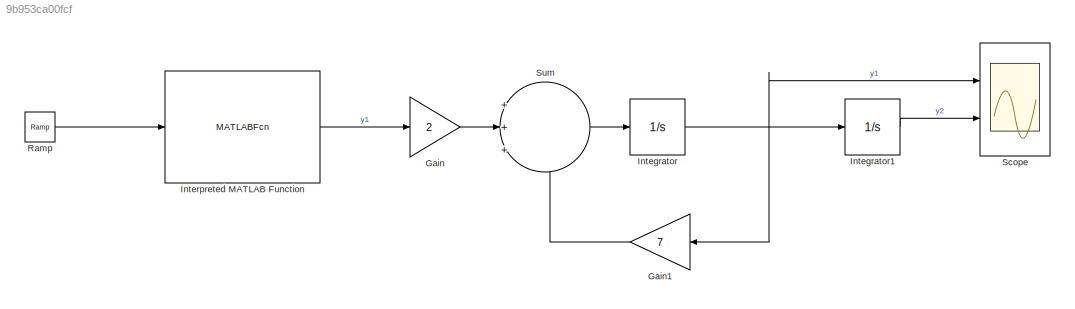
MODEL slx_9b953ca00fcf
KIND model
CONFIG AbsTol = auto
CONFIG EnableMultiTasking = off
CONFIG FixedStep = auto
CONFIG MaxStep = 1e-3
CONFIG MinStep = auto
CONFIG RelTol = 1e-3
CONFIG SampleTimeConstraint = Unconstrained
CONFIG SolverName = ode113
CONFIG StartTime = 0.0
CONFIG StopTime = 1.3
BLOCK [Gain] Gain
  Gain = 2
BLOCK [Gain] Gain1
  Gain = 7
  NameLocation = top
BLOCK [Integrator] Integrator
  InitialCondition = 3
  Ports = [1, 1]
BLOCK [Integrator] Integrator1
  InitialCondition = 1
  Ports = [1, 1]
BLOCK [MATLABFcn] Interpreted MATLAB Function
  MATLABFcn = (7*(2+3*exp(7)-5*exp(14)-4*exp(7-7*u)+25*exp(14-7*u)))/((9-4*exp(7)-5*exp(14)))
  OutputDimensions = 1
  Ports = [1, 1]
BLOCK [Reference] Ramp  REF=simulink/Sources/Ramp
  Ports = [0, 1]
  SourceBlock = simulink/Sources/Ramp
  SourceProductBaseCode = SL
  SourceType = Ramp
BLOCK [Scope] Scope
  Floating = off
  NumInputPorts = 2
  Ports = [2]
  ScopeSpecificationString = Simulink.scopes.TimeScopeBlockCfg('CurrentConfiguration', extmgr.ConfigurationSet(extmgr.Configuration('Core','General UI',true),extmgr.Configuration('Core','Source UI',true),extmgr.Configuration('Sources','WiredSimulink',true),extmgr.Configuration('Visuals','Time Domain',true,'SerializedDisplays',{struct('MinYLimReal','-3.8171','MaxYLimReal','16.28486','YLabelReal','','MinYLimMag','0.00000','MaxY...<+1399ch>
BLOCK [Sum] Sum
  Inputs = +++
  Ports = [3, 1]
LINE Gain1:1 -> Sum:3
LINE Gain:1 -> Sum:2
LINE Integrator1:1 -> Scope:2
NET Integrator:1 -> Gain1:1, Integrator1:1, Scope:1
LINE Interpreted MATLAB Function:1 -> Gain:1
LINE Ramp:1 -> Interpreted MATLAB Function:1
LINE Sum:1 -> Integrator:1
note: NET lines group one-source signal fan-out (src -> all destinations, sorted); 1:1 wires keep LINE
